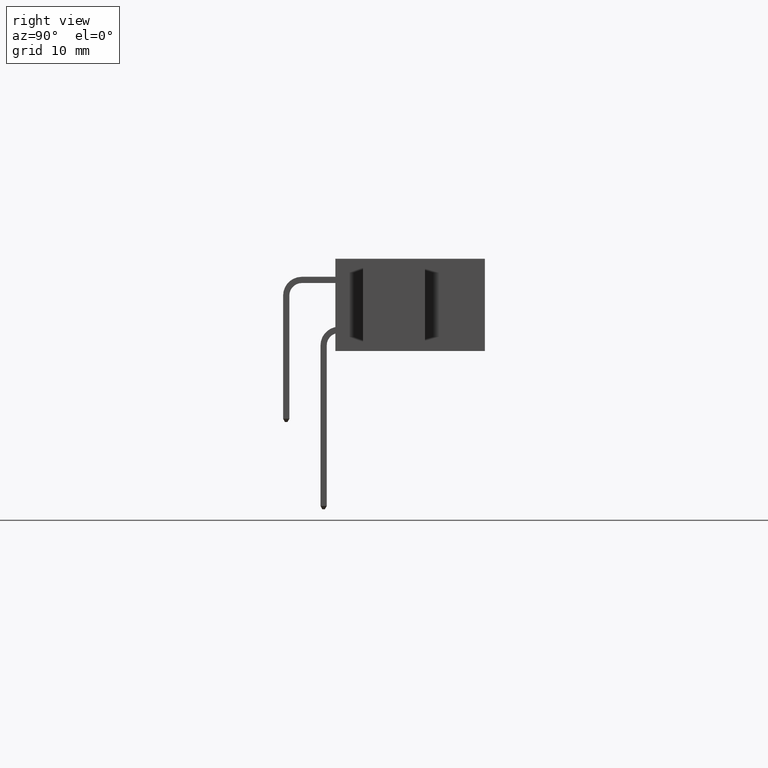
[diagram: clean part render]
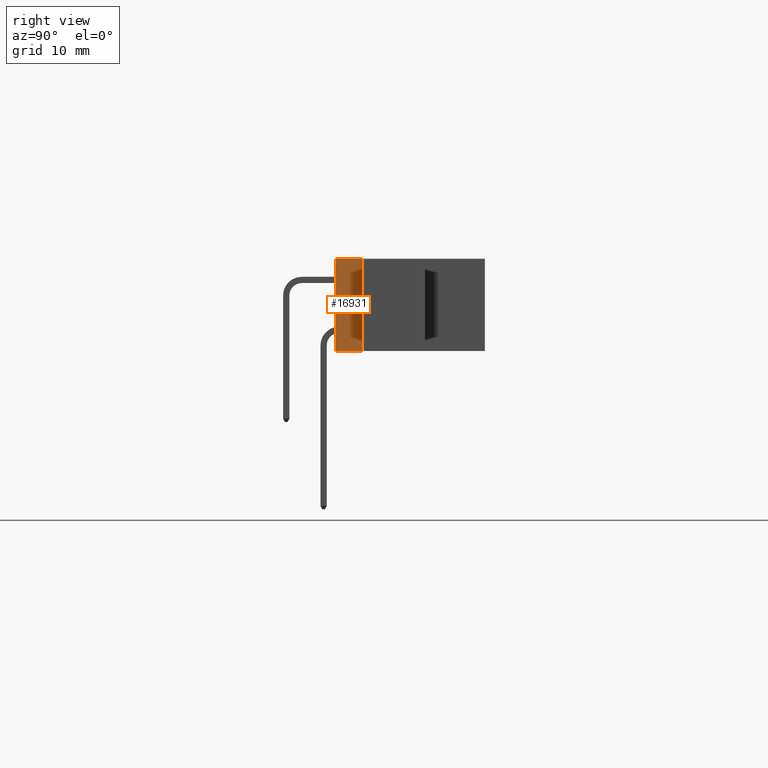
[diagram: same view with one face highlighted and labeled with its STEP entity id]
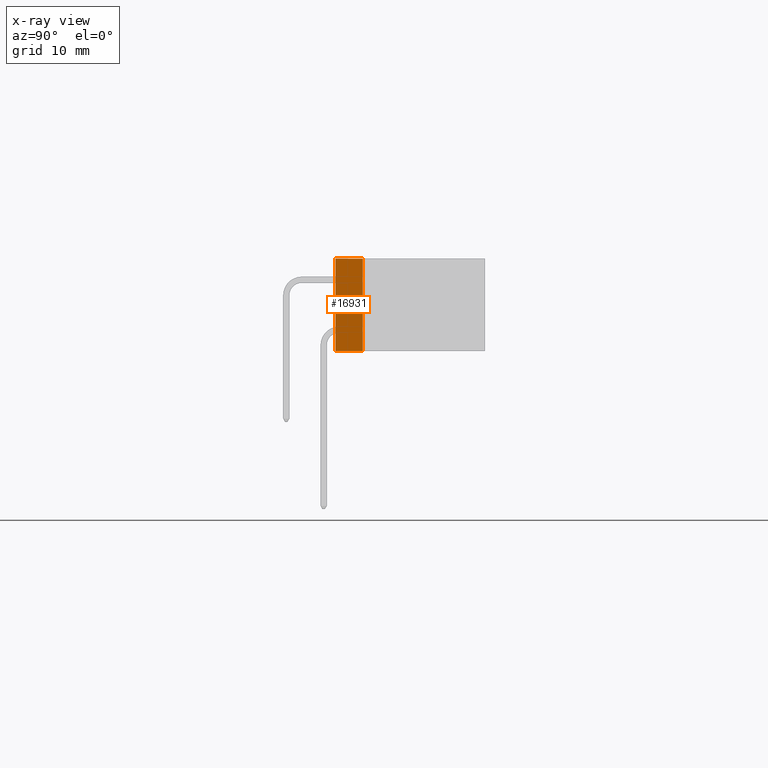
[diagram: x-ray of the same camera — body ghosted, the highlighted face saturated]
A machine part, right view. The second image highlights one B-rep face of the part: STEP entity #16931.
The next image is the same camera in x-ray: the body ghosted, the highlighted face saturated — about 0% of this face is hidden behind the body in this view.
In plain terms, the highlighted planar face has unit normal (-1, 0, 0).
Its self-contained STEP definition (entity closure, byte-faithful):
#164 = DIRECTION ( 'NONE',  ( -0.0000000000000000000, -1.000000000000000000, -0.0000000000000000000 ) ) ;
#476 = VECTOR ( 'NONE', #12149, 39.37007874015748100 ) ;
#791 = VECTOR ( 'NONE', #931, 39.37007874015748100 ) ;
#864 = CARTESIAN_POINT ( 'NONE',  ( 2.292499999999999500, 0.1100000000000000000, -0.3699999999999998300 ) ) ;
#904 = LINE ( 'NONE', #19114, #9015 ) ;
#931 = DIRECTION ( 'NONE',  ( -0.0000000000000000000, -1.000000000000000000, -0.0000000000000000000 ) ) ;
#1338 = LINE ( 'NONE', #19716, #791 ) ;
#2715 = FACE_OUTER_BOUND ( 'NONE', #9470, .T. ) ;
#3695 = ORIENTED_EDGE ( 'NONE', *, *, #4280, .F. ) ;
#3908 = CARTESIAN_POINT ( 'NONE',  ( 2.292499999999999500, 0.1100000000000000000, 2.388061258337338600E-016 ) ) ;
#4160 = ORIENTED_EDGE ( 'NONE', *, *, #16800, .F. ) ;
#4280 = EDGE_CURVE ( 'NONE', #14057, #17403, #1338, .T. ) ;
#4510 = VECTOR ( 'NONE', #164, 39.37007874015748100 ) ;
#4552 = CARTESIAN_POINT ( 'NONE',  ( 2.292499999999999500, 0.0000000000000000000, 0.0000000000000000000 ) ) ;
#5412 = LINE ( 'NONE', #15132, #476 ) ;
#5578 = DIRECTION ( 'NONE',  ( -1.000000000000000000, 0.0000000000000000000, 0.0000000000000000000 ) ) ;
#5673 = ORIENTED_EDGE ( 'NONE', *, *, #6156, .T. ) ;
#6156 = EDGE_CURVE ( 'NONE', #8694, #17403, #5412, .T. ) ;
#6864 = CARTESIAN_POINT ( 'NONE',  ( 2.292499999999999500, 0.0000000000000000000, -0.3699999999999998300 ) ) ;
#8694 = VERTEX_POINT ( 'NONE', #4552 ) ;
#9015 = VECTOR ( 'NONE', #13065, 39.37007874015748100 ) ;
#9470 = EDGE_LOOP ( 'NONE', ( #5673, #3695, #4160, #19818 ) ) ;
#11431 = CARTESIAN_POINT ( 'NONE',  ( 2.292499999999999500, 0.1100000000000000000, 2.388061258337338600E-016 ) ) ;
#12149 = DIRECTION ( 'NONE',  ( 0.0000000000000000000, 0.0000000000000000000, -1.000000000000000000 ) ) ;
#13065 = DIRECTION ( 'NONE',  ( 0.0000000000000000000, 0.0000000000000000000, -1.000000000000000000 ) ) ;
#13311 = LINE ( 'NONE', #14435, #4510 ) ;
#13333 = PLANE ( 'NONE',  #14820 ) ;
#14057 = VERTEX_POINT ( 'NONE', #864 ) ;
#14435 = CARTESIAN_POINT ( 'NONE',  ( 2.292499999999999500, 0.1100000000000000000, 2.388061258337338600E-016 ) ) ;
#14820 = AXIS2_PLACEMENT_3D ( 'NONE', #3908, #5578, #16406 ) ;
#15009 = VERTEX_POINT ( 'NONE', #11431 ) ;
#15132 = CARTESIAN_POINT ( 'NONE',  ( 2.292499999999999500, 0.0000000000000000000, 2.388061258337338600E-016 ) ) ;
#16406 = DIRECTION ( 'NONE',  ( 0.0000000000000000000, 0.0000000000000000000, 1.000000000000000000 ) ) ;
#16800 = EDGE_CURVE ( 'NONE', #15009, #14057, #904, .T. ) ;
#16931 = ADVANCED_FACE ( 'NONE', ( #2715 ), #13333, .F. ) ;
#17403 = VERTEX_POINT ( 'NONE', #6864 ) ;
#17930 = EDGE_CURVE ( 'NONE', #15009, #8694, #13311, .T. ) ;
#19114 = CARTESIAN_POINT ( 'NONE',  ( 2.292499999999999500, 0.1100000000000000000, 2.388061258337338600E-016 ) ) ;
#19716 = CARTESIAN_POINT ( 'NONE',  ( 2.292499999999999500, 0.1100000000000000000, -0.3699999999999998300 ) ) ;
#19818 = ORIENTED_EDGE ( 'NONE', *, *, #17930, .T. ) ;